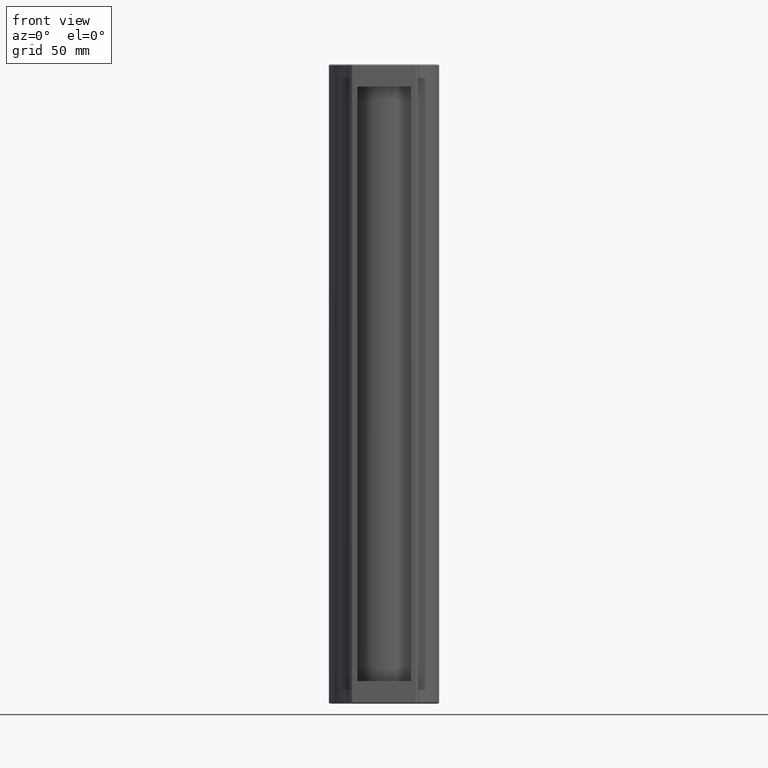
[diagram: clean part render]
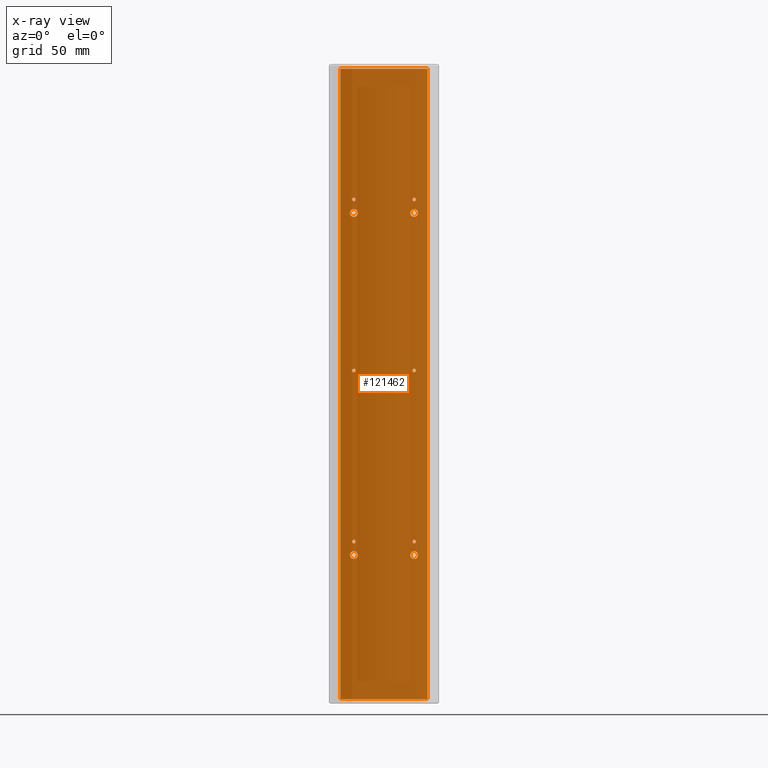
[diagram: x-ray — body ghosted, one internal face saturated and labeled with its STEP entity id]
A machine part, front view, then the same camera in x-ray: the body is ghosted and one INTERNAL B-rep face — a face not visible from any outside direction — is saturated and labeled: STEP entity #121462.
In plain terms, the highlighted planar face has unit normal (-0, 1, 0).
Its self-contained STEP definition (entity closure, byte-faithful):
#524 = VERTEX_POINT ( 'NONE', #46371 ) ;
#635 = FACE_BOUND ( 'NONE', #8472, .T. ) ;
#1732 = EDGE_LOOP ( 'NONE', ( #101740, #69036, #63685, #123918 ) ) ;
#2224 = ORIENTED_EDGE ( 'NONE', *, *, #27157, .F. ) ;
#3608 = CARTESIAN_POINT ( 'NONE',  ( -50.96201180637547900, -2.995475796930338500, 81.94999999999997400 ) ) ;
#3688 = FACE_BOUND ( 'NONE', #62977, .T. ) ;
#3750 = DIRECTION ( 'NONE',  ( -1.000000000000000000, -1.269309860470834700E-016, 0.0000000000000000000 ) ) ;
#3807 = AXIS2_PLACEMENT_3D ( 'NONE', #102654, #53503, #3750 ) ;
#4023 = VERTEX_POINT ( 'NONE', #45380 ) ;
#4545 = CARTESIAN_POINT ( 'NONE',  ( -24.16201180637542800, -2.995475796930334900, 81.94999999999998900 ) ) ;
#4625 = CIRCLE ( 'NONE', #78785, 1.749999999999987600 ) ;
#6226 = VERTEX_POINT ( 'NONE', #127363 ) ;
#6819 = EDGE_CURVE ( 'NONE', #61685, #30305, #107938, .T. ) ;
#7538 = EDGE_LOOP ( 'NONE', ( #110024, #96435 ) ) ;
#8472 = EDGE_LOOP ( 'NONE', ( #55800, #39074 ) ) ;
#8771 = DIRECTION ( 'NONE',  ( 0.0000000000000000000, 0.0000000000000000000, -1.000000000000000000 ) ) ;
#9320 = DIRECTION ( 'NONE',  ( -0.0000000000000000000, -1.000000000000000000, -0.0000000000000000000 ) ) ;
#9916 = FACE_BOUND ( 'NONE', #92858, .T. ) ;
#10205 = CARTESIAN_POINT ( 'NONE',  ( -50.96201180637547900, -2.995475796930338500, 5.949999999999985100 ) ) ;
#10291 = CIRCLE ( 'NONE', #48564, 1.749999999999987600 ) ;
#10441 = CARTESIAN_POINT ( 'NONE',  ( -50.96201180637547900, -2.995475796930338500, 5.949999999999985100 ) ) ;
#10453 = EDGE_CURVE ( 'NONE', #96775, #104434, #36524, .T. ) ;
#10552 = EDGE_LOOP ( 'NONE', ( #95768, #56331 ) ) ;
#11041 = DIRECTION ( 'NONE',  ( 0.0000000000000000000, 0.0000000000000000000, -1.000000000000000000 ) ) ;
#11758 = DIRECTION ( 'NONE',  ( -0.0000000000000000000, -1.000000000000000000, -0.0000000000000000000 ) ) ;
#12034 = AXIS2_PLACEMENT_3D ( 'NONE', #87594, #107405, #19322 ) ;
#13888 = EDGE_CURVE ( 'NONE', #101803, #524, #92005, .T. ) ;
#15782 = EDGE_CURVE ( 'NONE', #73743, #122477, #98868, .T. ) ;
#15911 = VERTEX_POINT ( 'NONE', #21580 ) ;
#16102 = FACE_BOUND ( 'NONE', #10552, .T. ) ;
#16305 = DIRECTION ( 'NONE',  ( 0.0000000000000000000, 0.0000000000000000000, -1.000000000000000000 ) ) ;
#16355 = EDGE_CURVE ( 'NONE', #71783, #4023, #109365, .T. ) ;
#17027 = CARTESIAN_POINT ( 'NONE',  ( -50.96201180637545700, -2.995475796930338500, -74.30000000000004000 ) ) ;
#17543 = EDGE_CURVE ( 'NONE', #50114, #15911, #76305, .T. ) ;
#18565 = CIRCLE ( 'NONE', #12034, 0.7999999999999951600 ) ;
#19322 = DIRECTION ( 'NONE',  ( 0.0000000000000000000, 0.0000000000000000000, -1.000000000000000000 ) ) ;
#20174 = DIRECTION ( 'NONE',  ( -0.0000000000000000000, -1.000000000000000000, -0.0000000000000000000 ) ) ;
#20288 = DIRECTION ( 'NONE',  ( -0.0000000000000000000, -1.000000000000000000, -0.0000000000000000000 ) ) ;
#20740 = VECTOR ( 'NONE', #31615, 1000.000000000000000 ) ;
#21112 = ORIENTED_EDGE ( 'NONE', *, *, #56708, .F. ) ;
#21580 = CARTESIAN_POINT ( 'NONE',  ( -50.96201180637547900, -2.995475796930338500, 5.149999999999990600 ) ) ;
#21709 = EDGE_CURVE ( 'NONE', #80165, #68814, #18565, .T. ) ;
#22370 = FACE_BOUND ( 'NONE', #87377, .T. ) ;
#22576 = CARTESIAN_POINT ( 'NONE',  ( -37.56201180637544500, -2.995475796930334900, 140.0000000000000000 ) ) ;
#23192 = DIRECTION ( 'NONE',  ( 0.0000000000000000000, 0.0000000000000000000, -1.000000000000000000 ) ) ;
#23316 = EDGE_LOOP ( 'NONE', ( #63011, #127251 ) ) ;
#25012 = CIRCLE ( 'NONE', #110644, 0.7999999999999951600 ) ;
#25804 = ORIENTED_EDGE ( 'NONE', *, *, #127860, .F. ) ;
#25818 = AXIS2_PLACEMENT_3D ( 'NONE', #41137, #11758, #80030 ) ;
#27157 = EDGE_CURVE ( 'NONE', #85775, #6226, #10291, .T. ) ;
#27713 = DIRECTION ( 'NONE',  ( -0.0000000000000000000, -1.000000000000000000, -0.0000000000000000000 ) ) ;
#27771 = EDGE_CURVE ( 'NONE', #524, #101803, #113523, .T. ) ;
#29207 = CARTESIAN_POINT ( 'NONE',  ( -24.16201180637543200, -2.995475796930334900, 75.94999999999998900 ) ) ;
#30305 = VERTEX_POINT ( 'NONE', #52062 ) ;
#30738 = CIRCLE ( 'NONE', #93065, 0.7999999999999942700 ) ;
#31615 = DIRECTION ( 'NONE',  ( 1.000000000000000000, 1.269309860470834700E-016, -0.0000000000000000000 ) ) ;
#32214 = ORIENTED_EDGE ( 'NONE', *, *, #114159, .F. ) ;
#34532 = AXIS2_PLACEMENT_3D ( 'NONE', #4545, #43469, #44350 ) ;
#34704 = EDGE_CURVE ( 'NONE', #104434, #96775, #71816, .T. ) ;
#34876 = DIRECTION ( 'NONE',  ( -0.0000000000000000000, -0.0000000000000000000, -1.000000000000000000 ) ) ;
#35474 = DIRECTION ( 'NONE',  ( 0.0000000000000000000, 0.0000000000000000000, -1.000000000000000000 ) ) ;
#36165 = FACE_BOUND ( 'NONE', #49357, .T. ) ;
#36231 = EDGE_CURVE ( 'NONE', #100002, #80238, #91195, .T. ) ;
#36524 = CIRCLE ( 'NONE', #25818, 0.7999999999999951600 ) ;
#39074 = ORIENTED_EDGE ( 'NONE', *, *, #13888, .F. ) ;
#39893 = CIRCLE ( 'NONE', #42123, 1.749999999999987600 ) ;
#41137 = CARTESIAN_POINT ( 'NONE',  ( -24.16201180637542800, -2.995475796930334900, -70.04999999999999700 ) ) ;
#41318 = DIRECTION ( 'NONE',  ( -0.0000000000000000000, -1.000000000000000000, -0.0000000000000000000 ) ) ;
#42123 = AXIS2_PLACEMENT_3D ( 'NONE', #42195, #41318, #23192 ) ;
#42195 = CARTESIAN_POINT ( 'NONE',  ( -24.16201180637542800, -2.995475796930334900, -76.05000000000001100 ) ) ;
#42956 = DIRECTION ( 'NONE',  ( 0.0000000000000000000, 0.0000000000000000000, -1.000000000000000000 ) ) ;
#43469 = DIRECTION ( 'NONE',  ( -0.0000000000000000000, -1.000000000000000000, -0.0000000000000000000 ) ) ;
#44188 = DIRECTION ( 'NONE',  ( -0.0000000000000000000, -1.000000000000000000, -0.0000000000000000000 ) ) ;
#44350 = DIRECTION ( 'NONE',  ( 0.0000000000000000000, 0.0000000000000000000, -1.000000000000000000 ) ) ;
#45380 = CARTESIAN_POINT ( 'NONE',  ( -24.16201180637542800, -2.995475796930334900, 6.749999999999989300 ) ) ;
#45763 = AXIS2_PLACEMENT_3D ( 'NONE', #126058, #105685, #16305 ) ;
#46371 = CARTESIAN_POINT ( 'NONE',  ( -24.16201180637542800, -2.995475796930334900, 81.15000000000000600 ) ) ;
#48348 = EDGE_CURVE ( 'NONE', #107466, #92491, #94864, .T. ) ;
#48539 = CIRCLE ( 'NONE', #90317, 1.749999999999987600 ) ;
#48564 = AXIS2_PLACEMENT_3D ( 'NONE', #108391, #117073, #49277 ) ;
#48577 = AXIS2_PLACEMENT_3D ( 'NONE', #10441, #69606, #79541 ) ;
#48801 = CARTESIAN_POINT ( 'NONE',  ( -50.96201180637545700, -2.995475796930338500, 74.19999999999998900 ) ) ;
#49277 = DIRECTION ( 'NONE',  ( 0.0000000000000000000, 0.0000000000000000000, -1.000000000000000000 ) ) ;
#49357 = EDGE_LOOP ( 'NONE', ( #120201, #97727 ) ) ;
#49764 = CARTESIAN_POINT ( 'NONE',  ( -50.96201180637547900, -2.995475796930338500, 81.14999999999999100 ) ) ;
#50099 = FACE_BOUND ( 'NONE', #95656, .T. ) ;
#50114 = VERTEX_POINT ( 'NONE', #54461 ) ;
#50679 = CARTESIAN_POINT ( 'NONE',  ( -56.96201180637545000, -2.995475796930337600, 140.0000000000000000 ) ) ;
#51429 = LINE ( 'NONE', #54337, #83723 ) ;
#52062 = CARTESIAN_POINT ( 'NONE',  ( -56.96201180637545000, -2.995475796930337600, 140.0000000000000000 ) ) ;
#52200 = AXIS2_PLACEMENT_3D ( 'NONE', #116104, #123977, #64840 ) ;
#53503 = DIRECTION ( 'NONE',  ( -1.269309860470834700E-016, 1.000000000000000000, 0.0000000000000000000 ) ) ;
#54337 = CARTESIAN_POINT ( 'NONE',  ( -18.16201180637543900, -2.995475796930332700, 140.0000000000000000 ) ) ;
#54461 = CARTESIAN_POINT ( 'NONE',  ( -50.96201180637547900, -2.995475796930338500, 6.749999999999978700 ) ) ;
#54682 = CARTESIAN_POINT ( 'NONE',  ( -56.96201180637545000, -2.995475796930337600, -140.0000000000000000 ) ) ;
#54718 = CARTESIAN_POINT ( 'NONE',  ( -50.96201180637547900, -2.995475796930338500, 82.74999999999997200 ) ) ;
#54855 = CARTESIAN_POINT ( 'NONE',  ( -50.96201180637545700, -2.995475796930338500, -76.05000000000002600 ) ) ;
#55019 = AXIS2_PLACEMENT_3D ( 'NONE', #119184, #20288, #107021 ) ;
#55396 = CARTESIAN_POINT ( 'NONE',  ( -50.96201180637547900, -2.995475796930338500, -70.05000000000001100 ) ) ;
#55800 = ORIENTED_EDGE ( 'NONE', *, *, #27771, .F. ) ;
#55805 = DIRECTION ( 'NONE',  ( -0.0000000000000000000, -1.000000000000000000, -0.0000000000000000000 ) ) ;
#55848 = VECTOR ( 'NONE', #71030, 1000.000000000000000 ) ;
#56099 = DIRECTION ( 'NONE',  ( -0.0000000000000000000, -1.000000000000000000, -0.0000000000000000000 ) ) ;
#56283 = EDGE_CURVE ( 'NONE', #72191, #91987, #51429, .T. ) ;
#56331 = ORIENTED_EDGE ( 'NONE', *, *, #85838, .F. ) ;
#56708 = EDGE_CURVE ( 'NONE', #122477, #73743, #25012, .T. ) ;
#59099 = CARTESIAN_POINT ( 'NONE',  ( -50.96201180637545700, -2.995475796930338500, 75.94999999999997400 ) ) ;
#59384 = CARTESIAN_POINT ( 'NONE',  ( -50.96201180637545700, -2.995475796930338500, 75.94999999999997400 ) ) ;
#60660 = DIRECTION ( 'NONE',  ( 0.0000000000000000000, 0.0000000000000000000, 1.000000000000000000 ) ) ;
#61468 = ORIENTED_EDGE ( 'NONE', *, *, #77244, .F. ) ;
#61685 = VERTEX_POINT ( 'NONE', #54682 ) ;
#61823 = CARTESIAN_POINT ( 'NONE',  ( -24.16201180637542800, -2.995475796930334900, 5.150000000000001200 ) ) ;
#62030 = DIRECTION ( 'NONE',  ( 0.0000000000000000000, 0.0000000000000000000, -1.000000000000000000 ) ) ;
#62035 = DIRECTION ( 'NONE',  ( -0.0000000000000000000, -1.000000000000000000, -0.0000000000000000000 ) ) ;
#62373 = CARTESIAN_POINT ( 'NONE',  ( -24.16201180637543200, -2.995475796930334900, 74.20000000000000300 ) ) ;
#62527 = FACE_BOUND ( 'NONE', #23316, .T. ) ;
#62977 = EDGE_LOOP ( 'NONE', ( #61468, #103414 ) ) ;
#63011 = ORIENTED_EDGE ( 'NONE', *, *, #16355, .F. ) ;
#63685 = ORIENTED_EDGE ( 'NONE', *, *, #118339, .F. ) ;
#64052 = LINE ( 'NONE', #22576, #20740 ) ;
#64840 = DIRECTION ( 'NONE',  ( 0.0000000000000000000, 0.0000000000000000000, -1.000000000000000000 ) ) ;
#66039 = DIRECTION ( 'NONE',  ( 0.0000000000000000000, 0.0000000000000000000, -1.000000000000000000 ) ) ;
#66571 = CARTESIAN_POINT ( 'NONE',  ( -50.96201180637545700, -2.995475796930338500, -76.05000000000002600 ) ) ;
#68050 = EDGE_CURVE ( 'NONE', #15911, #50114, #30738, .T. ) ;
#68147 = CIRCLE ( 'NONE', #113052, 0.7999999999999951600 ) ;
#68665 = CARTESIAN_POINT ( 'NONE',  ( -50.96201180637547900, -2.995475796930338500, -69.25000000000001400 ) ) ;
#68814 = VERTEX_POINT ( 'NONE', #68665 ) ;
#69036 = ORIENTED_EDGE ( 'NONE', *, *, #6819, .F. ) ;
#69219 = DIRECTION ( 'NONE',  ( -0.0000000000000000000, -1.000000000000000000, -0.0000000000000000000 ) ) ;
#69606 = DIRECTION ( 'NONE',  ( -0.0000000000000000000, -1.000000000000000000, -0.0000000000000000000 ) ) ;
#69612 = AXIS2_PLACEMENT_3D ( 'NONE', #59384, #69219, #8771 ) ;
#69780 = CIRCLE ( 'NONE', #127654, 1.749999999999987600 ) ;
#71030 = DIRECTION ( 'NONE',  ( -1.000000000000000000, -0.0000000000000000000, -0.0000000000000000000 ) ) ;
#71448 = CARTESIAN_POINT ( 'NONE',  ( -37.56201180637544500, -2.995475796930337600, -140.0000000000000000 ) ) ;
#71783 = VERTEX_POINT ( 'NONE', #61823 ) ;
#71816 = CIRCLE ( 'NONE', #45763, 0.7999999999999951600 ) ;
#72191 = VERTEX_POINT ( 'NONE', #120797 ) ;
#72388 = AXIS2_PLACEMENT_3D ( 'NONE', #54855, #56099, #66039 ) ;
#73510 = DIRECTION ( 'NONE',  ( 0.0000000000000000000, 0.0000000000000000000, -1.000000000000000000 ) ) ;
#73743 = VERTEX_POINT ( 'NONE', #54718 ) ;
#75700 = CARTESIAN_POINT ( 'NONE',  ( -24.16201180637542800, -2.995475796930334900, 82.74999999999998600 ) ) ;
#75985 = DIRECTION ( 'NONE',  ( -0.0000000000000000000, -1.000000000000000000, -0.0000000000000000000 ) ) ;
#76237 = AXIS2_PLACEMENT_3D ( 'NONE', #85576, #75985, #95459 ) ;
#76299 = CARTESIAN_POINT ( 'NONE',  ( -50.96201180637545700, -2.995475796930338500, -77.80000000000001100 ) ) ;
#76305 = CIRCLE ( 'NONE', #48577, 0.7999999999999942700 ) ;
#77238 = CARTESIAN_POINT ( 'NONE',  ( -50.96201180637545700, -2.995475796930338500, 77.69999999999996000 ) ) ;
#77244 = EDGE_CURVE ( 'NONE', #114917, #101599, #39893, .T. ) ;
#77805 = CARTESIAN_POINT ( 'NONE',  ( -18.16201180637543900, -2.995475796930334900, -140.0000000000000000 ) ) ;
#78785 = AXIS2_PLACEMENT_3D ( 'NONE', #66571, #27713, #116186 ) ;
#79440 = FACE_OUTER_BOUND ( 'NONE', #1732, .T. ) ;
#79541 = DIRECTION ( 'NONE',  ( 0.0000000000000000000, 0.0000000000000000000, -1.000000000000000000 ) ) ;
#80030 = DIRECTION ( 'NONE',  ( 0.0000000000000000000, 0.0000000000000000000, -1.000000000000000000 ) ) ;
#80165 = VERTEX_POINT ( 'NONE', #95194 ) ;
#80238 = VERTEX_POINT ( 'NONE', #17027 ) ;
#80589 = CARTESIAN_POINT ( 'NONE',  ( -24.16201180637542800, -2.995475796930334900, -74.30000000000002600 ) ) ;
#82563 = AXIS2_PLACEMENT_3D ( 'NONE', #59099, #98352, #128181 ) ;
#83626 = EDGE_CURVE ( 'NONE', #101599, #114917, #48539, .T. ) ;
#83723 = VECTOR ( 'NONE', #34876, 1000.000000000000000 ) ;
#85270 = CIRCLE ( 'NONE', #76237, 0.7999999999999942700 ) ;
#85576 = CARTESIAN_POINT ( 'NONE',  ( -24.16201180637542800, -2.995475796930334900, 5.949999999999994800 ) ) ;
#85775 = VERTEX_POINT ( 'NONE', #62373 ) ;
#85838 = EDGE_CURVE ( 'NONE', #68814, #80165, #68147, .T. ) ;
#87377 = EDGE_LOOP ( 'NONE', ( #25804, #127060 ) ) ;
#87576 = CARTESIAN_POINT ( 'NONE',  ( -24.16201180637542800, -2.995475796930334900, -69.25000000000000000 ) ) ;
#87594 = CARTESIAN_POINT ( 'NONE',  ( -50.96201180637547900, -2.995475796930338500, -70.05000000000001100 ) ) ;
#87638 = PLANE ( 'NONE',  #3807 ) ;
#88279 = CIRCLE ( 'NONE', #82563, 1.749999999999987600 ) ;
#88774 = FACE_BOUND ( 'NONE', #7538, .T. ) ;
#89221 = DIRECTION ( 'NONE',  ( 0.0000000000000000000, 0.0000000000000000000, -1.000000000000000000 ) ) ;
#90317 = AXIS2_PLACEMENT_3D ( 'NONE', #113655, #44188, #73510 ) ;
#91195 = CIRCLE ( 'NONE', #72388, 1.749999999999987600 ) ;
#91520 = LINE ( 'NONE', #71448, #55848 ) ;
#91987 = VERTEX_POINT ( 'NONE', #77805 ) ;
#92005 = CIRCLE ( 'NONE', #52200, 0.7999999999999951600 ) ;
#92075 = CARTESIAN_POINT ( 'NONE',  ( -24.16201180637542800, -2.995475796930334900, -77.79999999999999700 ) ) ;
#92188 = CARTESIAN_POINT ( 'NONE',  ( -24.16201180637542800, -2.995475796930334900, 5.949999999999994800 ) ) ;
#92491 = VERTEX_POINT ( 'NONE', #48801 ) ;
#92761 = ORIENTED_EDGE ( 'NONE', *, *, #15782, .F. ) ;
#92858 = EDGE_LOOP ( 'NONE', ( #21112, #92761 ) ) ;
#93065 = AXIS2_PLACEMENT_3D ( 'NONE', #10205, #20174, #11041 ) ;
#94864 = CIRCLE ( 'NONE', #69612, 1.749999999999987600 ) ;
#95073 = ORIENTED_EDGE ( 'NONE', *, *, #118978, .F. ) ;
#95194 = CARTESIAN_POINT ( 'NONE',  ( -50.96201180637547900, -2.995475796930338500, -70.85000000000000900 ) ) ;
#95459 = DIRECTION ( 'NONE',  ( 0.0000000000000000000, 0.0000000000000000000, -1.000000000000000000 ) ) ;
#95656 = EDGE_LOOP ( 'NONE', ( #2224, #32214 ) ) ;
#95768 = ORIENTED_EDGE ( 'NONE', *, *, #21709, .F. ) ;
#96392 = AXIS2_PLACEMENT_3D ( 'NONE', #92188, #62035, #42956 ) ;
#96435 = ORIENTED_EDGE ( 'NONE', *, *, #34704, .F. ) ;
#96775 = VERTEX_POINT ( 'NONE', #120653 ) ;
#96818 = ORIENTED_EDGE ( 'NONE', *, *, #36231, .F. ) ;
#97727 = ORIENTED_EDGE ( 'NONE', *, *, #17543, .F. ) ;
#98067 = FACE_BOUND ( 'NONE', #105438, .T. ) ;
#98352 = DIRECTION ( 'NONE',  ( -0.0000000000000000000, -1.000000000000000000, -0.0000000000000000000 ) ) ;
#98868 = CIRCLE ( 'NONE', #55019, 0.7999999999999951600 ) ;
#100002 = VERTEX_POINT ( 'NONE', #76299 ) ;
#101599 = VERTEX_POINT ( 'NONE', #80589 ) ;
#101740 = ORIENTED_EDGE ( 'NONE', *, *, #113279, .F. ) ;
#101803 = VERTEX_POINT ( 'NONE', #75700 ) ;
#102654 = CARTESIAN_POINT ( 'NONE',  ( -37.56201180637544500, -2.995475796930334900, 140.0000000000000000 ) ) ;
#103414 = ORIENTED_EDGE ( 'NONE', *, *, #83626, .F. ) ;
#104434 = VERTEX_POINT ( 'NONE', #87576 ) ;
#105438 = EDGE_LOOP ( 'NONE', ( #96818, #95073 ) ) ;
#105685 = DIRECTION ( 'NONE',  ( -0.0000000000000000000, -1.000000000000000000, -0.0000000000000000000 ) ) ;
#107021 = DIRECTION ( 'NONE',  ( 0.0000000000000000000, 0.0000000000000000000, -1.000000000000000000 ) ) ;
#107405 = DIRECTION ( 'NONE',  ( -0.0000000000000000000, -1.000000000000000000, -0.0000000000000000000 ) ) ;
#107466 = VERTEX_POINT ( 'NONE', #77238 ) ;
#107938 = LINE ( 'NONE', #50679, #120359 ) ;
#108391 = CARTESIAN_POINT ( 'NONE',  ( -24.16201180637543200, -2.995475796930334900, 75.94999999999998900 ) ) ;
#109365 = CIRCLE ( 'NONE', #96392, 0.7999999999999942700 ) ;
#110024 = ORIENTED_EDGE ( 'NONE', *, *, #10453, .F. ) ;
#110644 = AXIS2_PLACEMENT_3D ( 'NONE', #3608, #121161, #62030 ) ;
#113052 = AXIS2_PLACEMENT_3D ( 'NONE', #55396, #55805, #35474 ) ;
#113279 = EDGE_CURVE ( 'NONE', #30305, #72191, #64052, .T. ) ;
#113523 = CIRCLE ( 'NONE', #34532, 0.7999999999999951600 ) ;
#113655 = CARTESIAN_POINT ( 'NONE',  ( -24.16201180637542800, -2.995475796930334900, -76.05000000000001100 ) ) ;
#114159 = EDGE_CURVE ( 'NONE', #6226, #85775, #69780, .T. ) ;
#114917 = VERTEX_POINT ( 'NONE', #92075 ) ;
#114938 = EDGE_CURVE ( 'NONE', #4023, #71783, #85270, .T. ) ;
#116104 = CARTESIAN_POINT ( 'NONE',  ( -24.16201180637542800, -2.995475796930334900, 81.94999999999998900 ) ) ;
#116186 = DIRECTION ( 'NONE',  ( 0.0000000000000000000, 0.0000000000000000000, -1.000000000000000000 ) ) ;
#117073 = DIRECTION ( 'NONE',  ( -0.0000000000000000000, -1.000000000000000000, -0.0000000000000000000 ) ) ;
#118339 = EDGE_CURVE ( 'NONE', #91987, #61685, #91520, .T. ) ;
#118978 = EDGE_CURVE ( 'NONE', #80238, #100002, #4625, .T. ) ;
#119184 = CARTESIAN_POINT ( 'NONE',  ( -50.96201180637547900, -2.995475796930338500, 81.94999999999997400 ) ) ;
#120201 = ORIENTED_EDGE ( 'NONE', *, *, #68050, .F. ) ;
#120359 = VECTOR ( 'NONE', #60660, 1000.000000000000000 ) ;
#120653 = CARTESIAN_POINT ( 'NONE',  ( -24.16201180637542800, -2.995475796930334900, -70.84999999999999400 ) ) ;
#120797 = CARTESIAN_POINT ( 'NONE',  ( -18.16201180637543900, -2.995475796930333600, 140.0000000000000000 ) ) ;
#121161 = DIRECTION ( 'NONE',  ( -0.0000000000000000000, -1.000000000000000000, -0.0000000000000000000 ) ) ;
#121462 = ADVANCED_FACE ( 'NONE', ( #79440, #98067, #3688, #22370, #50099, #16102, #88774, #62527, #36165, #9916, #635 ), #87638, .F. ) ;
#122477 = VERTEX_POINT ( 'NONE', #49764 ) ;
#123918 = ORIENTED_EDGE ( 'NONE', *, *, #56283, .F. ) ;
#123977 = DIRECTION ( 'NONE',  ( -0.0000000000000000000, -1.000000000000000000, -0.0000000000000000000 ) ) ;
#126058 = CARTESIAN_POINT ( 'NONE',  ( -24.16201180637542800, -2.995475796930334900, -70.04999999999999700 ) ) ;
#127060 = ORIENTED_EDGE ( 'NONE', *, *, #48348, .F. ) ;
#127251 = ORIENTED_EDGE ( 'NONE', *, *, #114938, .F. ) ;
#127363 = CARTESIAN_POINT ( 'NONE',  ( -24.16201180637543200, -2.995475796930334900, 77.69999999999997400 ) ) ;
#127654 = AXIS2_PLACEMENT_3D ( 'NONE', #29207, #9320, #89221 ) ;
#127860 = EDGE_CURVE ( 'NONE', #92491, #107466, #88279, .T. ) ;
#128181 = DIRECTION ( 'NONE',  ( 0.0000000000000000000, 0.0000000000000000000, -1.000000000000000000 ) ) ;